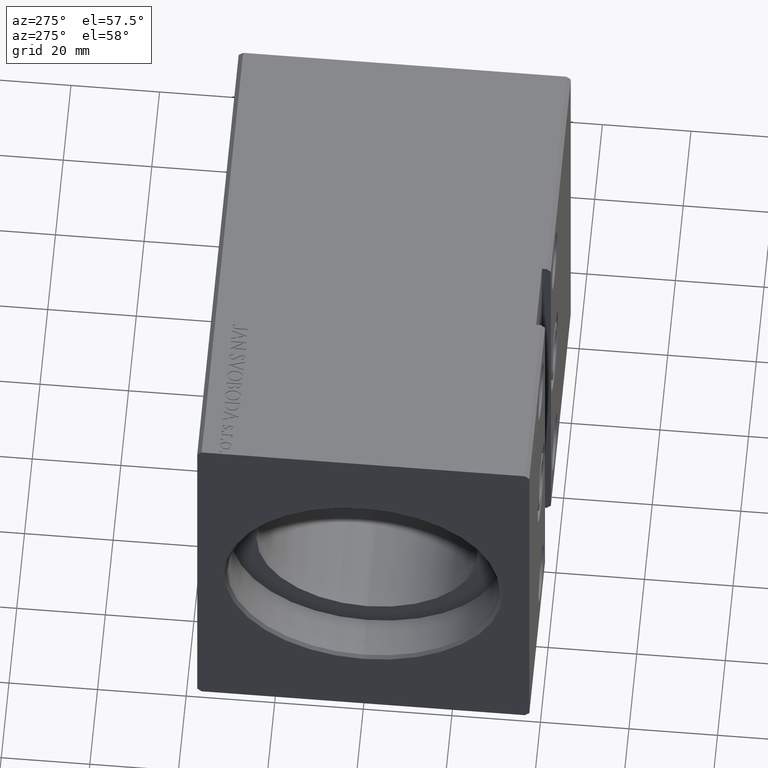
[diagram: clean part render]
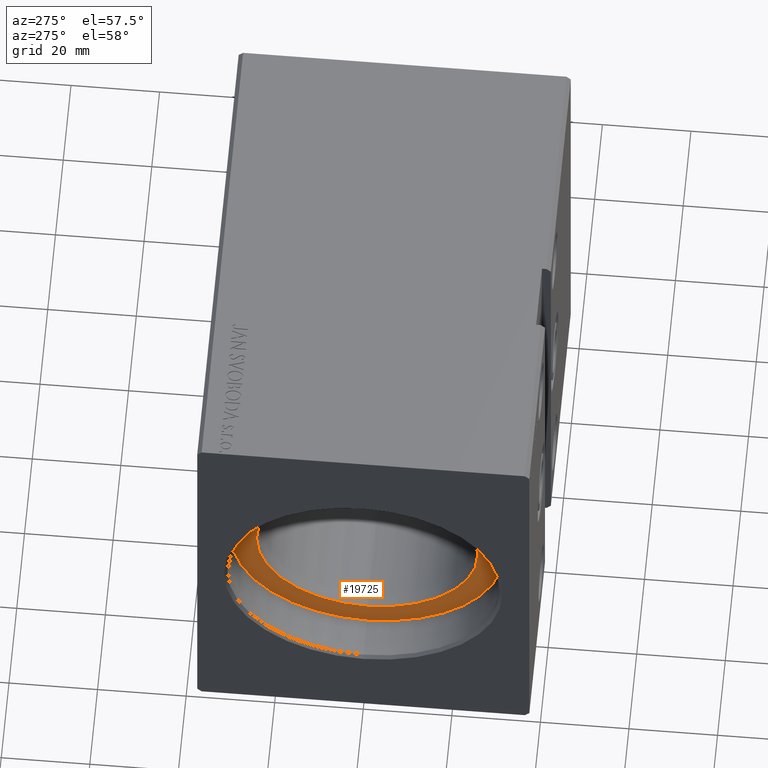
[diagram: same view with one face highlighted and labeled with its STEP entity id]
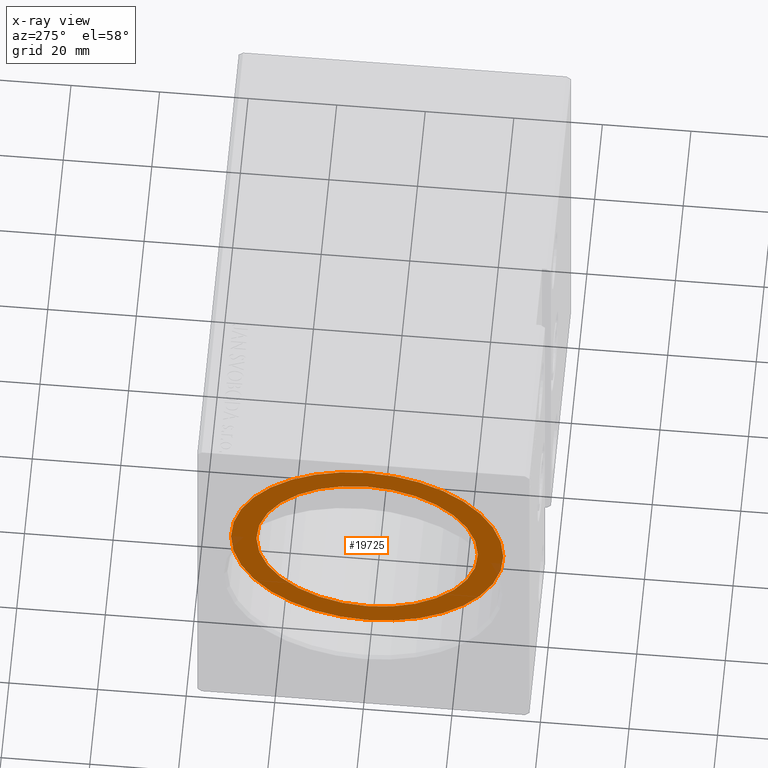
[diagram: x-ray of the same camera — body ghosted, the highlighted face saturated]
A machine part, auxiliary view. The second image highlights one B-rep face of the part: STEP entity #19725.
The next image is the same camera in x-ray: the body ghosted, the highlighted face saturated — about 1% of this face is hidden behind the body in this view.
In plain terms, the highlighted planar face has unit normal (-1, 0, 0).
Its self-contained STEP definition (entity closure, byte-faithful):
#803 = CARTESIAN_POINT ( 'NONE',  ( 9.999999999999994671, 0.000000000000000000, 0.000000000000000000 ) ) ;
#945 = CIRCLE ( 'NONE', #36465, 25.00000000000000000 ) ;
#5495 = DIRECTION ( 'NONE',  ( -1.000000000000000000, 0.000000000000000000, 0.000000000000000000 ) ) ;
#7680 = DIRECTION ( 'NONE',  ( -1.000000000000000000, 0.000000000000000000, 0.000000000000000000 ) ) ;
#7766 = CIRCLE ( 'NONE', #22224, 25.00000000000000000 ) ;
#7808 = DIRECTION ( 'NONE',  ( -1.000000000000000000, 0.000000000000000000, 0.000000000000000000 ) ) ;
#8557 = DIRECTION ( 'NONE',  ( 0.000000000000000000, 0.000000000000000000, 1.000000000000000000 ) ) ;
#9136 = ORIENTED_EDGE ( 'NONE', *, *, #25109, .T. ) ;
#9490 = EDGE_CURVE ( 'NONE', #23351, #36280, #945, .T. ) ;
#11892 = PLANE ( 'NONE',  #22195 ) ;
#12093 = FACE_OUTER_BOUND ( 'NONE', #36629, .T. ) ;
#12120 = CARTESIAN_POINT ( 'NONE',  ( 9.999999999999994671, 0.000000000000000000, 0.000000000000000000 ) ) ;
#12984 = AXIS2_PLACEMENT_3D ( 'NONE', #36571, #17829, #8557 ) ;
#13374 = EDGE_CURVE ( 'NONE', #37336, #15448, #37843, .T. ) ;
#13646 = DIRECTION ( 'NONE',  ( 0.000000000000000000, 0.000000000000000000, 1.000000000000000000 ) ) ;
#15373 = CARTESIAN_POINT ( 'NONE',  ( 10.00000000000000000, 0.000000000000000000, 0.000000000000000000 ) ) ;
#15448 = VERTEX_POINT ( 'NONE', #29263 ) ;
#16102 = CARTESIAN_POINT ( 'NONE',  ( 9.999999999999994671, 3.061616997868383043E-15, -25.00000000000000000 ) ) ;
#17829 = DIRECTION ( 'NONE',  ( -1.000000000000000000, 0.000000000000000000, 0.000000000000000000 ) ) ;
#18066 = DIRECTION ( 'NONE',  ( 0.000000000000000000, 0.000000000000000000, 1.000000000000000000 ) ) ;
#19423 = CARTESIAN_POINT ( 'NONE',  ( 10.00000000000000000, 0.000000000000000000, 0.000000000000000000 ) ) ;
#19725 = ADVANCED_FACE ( 'NONE', ( #30859, #12093 ), #11892, .T. ) ;
#20081 = AXIS2_PLACEMENT_3D ( 'NONE', #19423, #7680, #13646 ) ;
#20646 = EDGE_LOOP ( 'NONE', ( #34411, #24544 ) ) ;
#21268 = EDGE_CURVE ( 'NONE', #36280, #23351, #7766, .T. ) ;
#22195 = AXIS2_PLACEMENT_3D ( 'NONE', #15373, #5495, #18066 ) ;
#22224 = AXIS2_PLACEMENT_3D ( 'NONE', #12120, #40338, #24678 ) ;
#23351 = VERTEX_POINT ( 'NONE', #33637 ) ;
#24174 = CIRCLE ( 'NONE', #12984, 30.75000000000000355 ) ;
#24544 = ORIENTED_EDGE ( 'NONE', *, *, #21268, .F. ) ;
#24678 = DIRECTION ( 'NONE',  ( 0.000000000000000000, 0.000000000000000000, 1.000000000000000000 ) ) ;
#25109 = EDGE_CURVE ( 'NONE', #15448, #37336, #24174, .T. ) ;
#26137 = DIRECTION ( 'NONE',  ( 0.000000000000000000, 0.000000000000000000, 1.000000000000000000 ) ) ;
#27409 = ORIENTED_EDGE ( 'NONE', *, *, #13374, .T. ) ;
#29263 = CARTESIAN_POINT ( 'NONE',  ( 10.00000000000000000, 3.765788907378111328E-15, -30.75000000000000355 ) ) ;
#30859 = FACE_BOUND ( 'NONE', #20646, .T. ) ;
#33637 = CARTESIAN_POINT ( 'NONE',  ( 9.999999999999994671, 0.000000000000000000, 25.00000000000000000 ) ) ;
#34411 = ORIENTED_EDGE ( 'NONE', *, *, #9490, .F. ) ;
#36280 = VERTEX_POINT ( 'NONE', #16102 ) ;
#36465 = AXIS2_PLACEMENT_3D ( 'NONE', #803, #7808, #26137 ) ;
#36571 = CARTESIAN_POINT ( 'NONE',  ( 10.00000000000000000, 0.000000000000000000, 0.000000000000000000 ) ) ;
#36629 = EDGE_LOOP ( 'NONE', ( #27409, #9136 ) ) ;
#37306 = CARTESIAN_POINT ( 'NONE',  ( 10.00000000000000000, 0.000000000000000000, 30.75000000000000355 ) ) ;
#37336 = VERTEX_POINT ( 'NONE', #37306 ) ;
#37843 = CIRCLE ( 'NONE', #20081, 30.75000000000000355 ) ;
#40338 = DIRECTION ( 'NONE',  ( -1.000000000000000000, 0.000000000000000000, 0.000000000000000000 ) ) ;